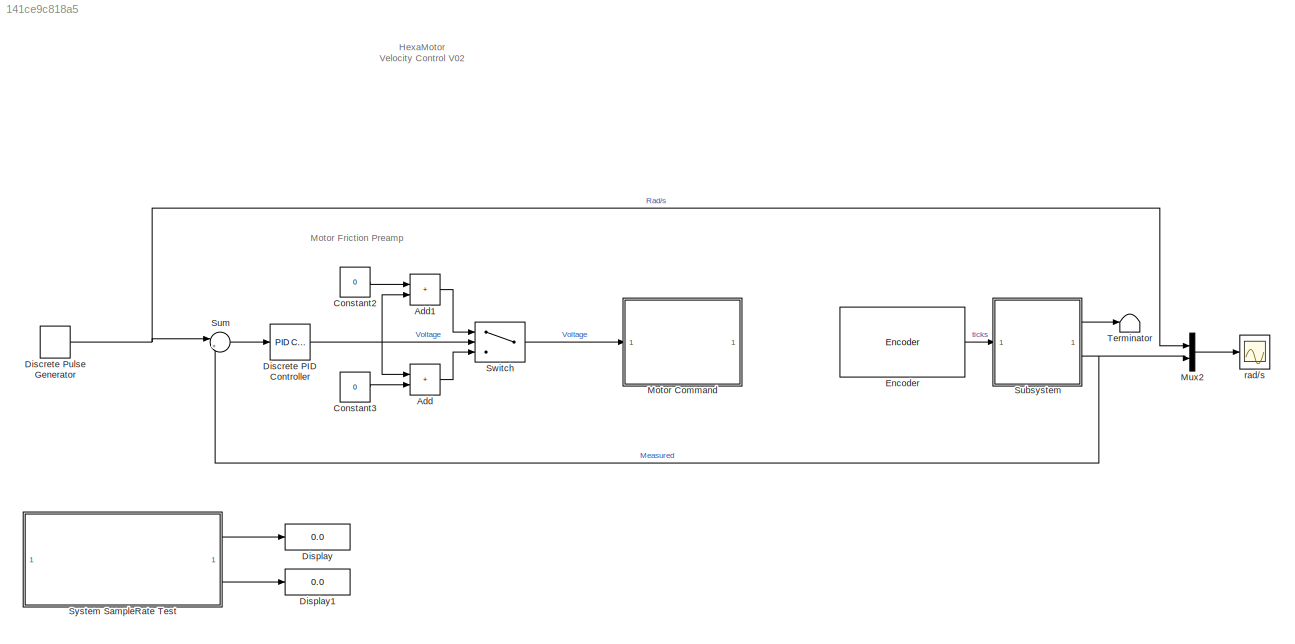
MODEL slx_141ce9c818a5
KIND model
CONFIG EnableMultiTasking = on
CONFIG SolverName = FixedStepAuto
CONFIG StopTime = 7.5
WORKSPACE source: mxarray member
WORKSPACE sampleRate = 0.005
BLOCK [Sum] Add
  IconShape = rectangular
BLOCK [Sum] Add1
  IconShape = rectangular
BLOCK [Constant] Constant2
  SampleTime = sampleRate
  Value = 0
BLOCK [Constant] Constant3
  SampleTime = sampleRate
  Value = 0
BLOCK [Reference] Discrete PID Controller  REF=slpidlib/PID Controller
  LibrarySourceBlock = simulink/Discrete/Discrete PID Controller
  SourceBlock = slpidlib/PID Controller
  SourceType = PID 1dof
BLOCK [DiscretePulseGenerator] Discrete Pulse Generator
  Amplitude = 15
  Period = 4/sampleRate
  PhaseDelay = 1/sampleRate
  PulseWidth = 2/sampleRate
  SampleTime = sampleRate
BLOCK [Display] Display
  Decimation = 1
BLOCK [Display] Display1
  Decimation = 1
BLOCK [Reference] Encoder  REF=arduinosensorlib/Encoder
  SourceBlock = arduinosensorlib/Encoder
  SourceType = Arduino Rotary Encoder
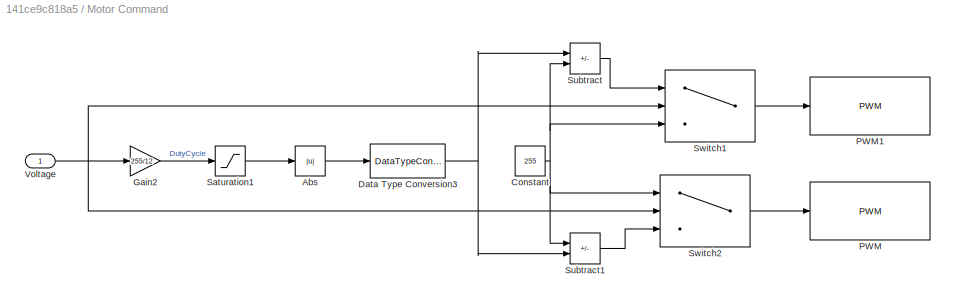
BLOCK [SubSystem] Motor Command
BLOCK [Abs] Motor Command/Abs
  SaturateOnIntegerOverflow = off
BLOCK [Constant] Motor Command/Constant
  OutDataTypeStr = uint8
  Value = 255
BLOCK [DataTypeConversion] Motor Command/Data Type Conversion3
  OutDataTypeStr = uint8
  RndMeth = Floor
  SaturateOnIntegerOverflow = off
BLOCK [Gain] Motor Command/Gain2
  Gain = 255/12
BLOCK [Reference] Motor Command/PWM  REF=arduinolib/PWM
  LibrarySourceBlock = gizmoLibrary/Arduino Utilities/PWM
  SourceBlock = arduinolib/PWM
  SourceType = Arduino PWM
BLOCK [Reference] Motor Command/PWM1  REF=arduinolib/PWM
  LibrarySourceBlock = gizmoLibrary/Arduino Utilities/PWM
  SourceBlock = arduinolib/PWM
  SourceType = Arduino PWM
BLOCK [Saturate] Motor Command/Saturation1
  LowerLimit = -255
  UpperLimit = 255
BLOCK [Sum] Motor Command/Subtract
  IconShape = rectangular
  Inputs = -+
BLOCK [Sum] Motor Command/Subtract1
  IconShape = rectangular
  Inputs = +-
BLOCK [Switch] Motor Command/Switch1
  Criteria = u2 > Threshold
  InputSameDT = off
  OutDataTypeStr = uint8
  SaturateOnIntegerOverflow = off
BLOCK [Switch] Motor Command/Switch2
  Criteria = u2 > Threshold
  InputSameDT = off
  OutDataTypeStr = uint8
  SaturateOnIntegerOverflow = off
BLOCK [Inport] Motor Command/Voltage
BLOCK [Mux] Mux2
  DisplayOption = bar
  Inputs = 2
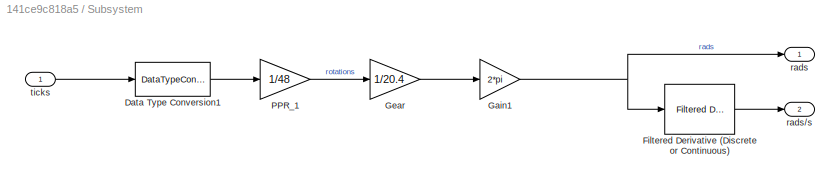
BLOCK [SubSystem] Subsystem
BLOCK [DataTypeConversion] Subsystem/Data Type Conversion1
  OutDataTypeStr = double
  RndMeth = Floor
  SaturateOnIntegerOverflow = off
BLOCK [Reference] Subsystem/Filtered Derivative (Discrete or Continuous)  REF=eeGeneralControl/Filtered Derivative
(Discrete or Continuous)
  LibrarySourceBlock = ee_sl_lib/General Control/Filtered Derivative\n(Discrete or Continuous)
  SourceBlock = eeGeneralControl/Filtered Derivative\n(Discrete or Continuous)
  SourceType = Filtered Derivative (Discrete or Continuous)
BLOCK [Gain] Subsystem/Gain1
  Gain = 2*pi
BLOCK [Gain] Subsystem/Gear
  Gain = 1/20.4
BLOCK [Gain] Subsystem/PPR_1
  Gain = 1/48
BLOCK [Outport] Subsystem/rads
BLOCK [Outport] Subsystem/rads//s
  Port = 2
BLOCK [Inport] Subsystem/ticks
BLOCK [Sum] Sum
  Inputs = |+-
BLOCK [Switch] Switch
  Criteria = u2 > Threshold
  InputSameDT = off
  SaturateOnIntegerOverflow = off
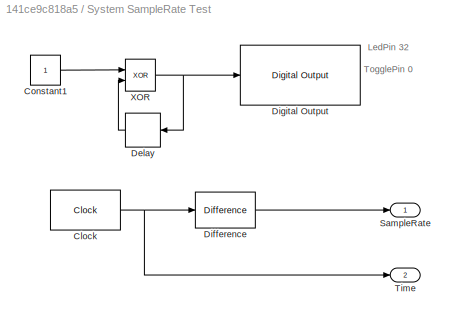
BLOCK [SubSystem] System SampleRate Test
BLOCK [Clock] System SampleRate Test/Clock
  Decimation = 3
  DisplayTime = on
BLOCK [Constant] System SampleRate Test/Constant1
  SampleTime = sampleRate
BLOCK [Delay] System SampleRate Test/Delay
  DelayLength = 1
  InitialCondition = 0
  InputPortMap = u0
  SampleTime = sampleRate
BLOCK [Reference] System SampleRate Test/Difference  REF=simulink/Quick Insert/Discrete/Difference
  SourceBlock = simulink/Quick Insert/Discrete/Difference
  SourceType = Difference
BLOCK [Reference] System SampleRate Test/Digital Output  REF=arduinolib/Digital Output
  SourceBlock = arduinolib/Digital Output
  SourceType = Arduino Digital Output
BLOCK [Outport] System SampleRate Test/SampleRate
BLOCK [Outport] System SampleRate Test/Time
  Port = 2
BLOCK [Logic] System SampleRate Test/XOR
  AllPortsSameDT = off
  IconShape = distinctive
  Operator = XOR
  OutDataTypeStr = boolean
BLOCK [Terminator] Terminator
BLOCK [Scope] rad//s
  ActiveDisplayYMaximum = 17.035196086189206
  ActiveDisplayYMinimum = -3.3167647757028536
  DataLogging = on
  DataLoggingSaveFormat = Structure With Time
  Floating = off
  GraphicalSettings = {"Style":{"BackgroundColor":[0.12941176470588237,0.12941176470588237,0.12941176470588237],"AxesColor":[0.07058823529411765,0.07058823529411765,0.07058823529411765],"LabelsColor":[0.8509803921568627,0.8509803921568627,0.8509803921568627],"PreserveColors":false,"Visible":[true,true],"LineStyle":["-","-"],"LineWidth":[1.5,1.5],"BarWidth":[0.9,0.9],"LineColor":["auto","auto"],"LineFaceAlpha":[1,1],"Li...<+2191ch>
  MultipleDisplayCache = [{"MaxYLimMag":17.035196086189206,"MaxYLimReal":17.035196086189206,"MinYLimMag":0,"MinYLimReal":-3.3167647757028536,"PlotAsMagnitudePhase":false,"ShowGrid":true,"ShowLegend":true,"Title":"%<SignalLabel>","YLabel":""}]
  NumInputPorts = 1
  ScopeFrameLocation = window
  ShowLegend = on
  Visible = on
  WasSavedAsWebScope = on
  WindowPosition = [788.000000,377.000000,803.000000,445.000000,]
ANNOTATION (root): HexaMotor Velocity Control V02
ANNOTATION (root): Motor Friction Preamp
ANNOTATION System SampleRate Test: LedPin 32
ANNOTATION System SampleRate Test: TogglePin 0
LINE Add1:1 -> Switch:1
LINE Add:1 -> Switch:3
LINE Constant2:1 -> Add1:1
LINE Constant3:1 -> Add:2
NET Discrete PID Controller:1 -> Add1:2, Add:1, Switch:2
NET Discrete Pulse Generator:1 -> Mux2:1, Sum:1
LINE Encoder:1 -> Subsystem:1
LINE Motor Command/Abs:1 -> Motor Command/Data Type Conversion3:1
NET Motor Command/Constant:1 -> Motor Command/Subtract1:1, Motor Command/Subtract:2, Motor Command/Switch1:3, Motor Command/Switch2:1
NET Motor Command/Data Type Conversion3:1 -> Motor Command/Subtract1:2, Motor Command/Subtract:1
LINE Motor Command/Gain2:1 -> Motor Command/Saturation1:1
LINE Motor Command/Saturation1:1 -> Motor Command/Abs:1
LINE Motor Command/Subtract1:1 -> Motor Command/Switch2:3
LINE Motor Command/Subtract:1 -> Motor Command/Switch1:1
LINE Motor Command/Switch1:1 -> Motor Command/PWM1:1
LINE Motor Command/Switch2:1 -> Motor Command/PWM:1
NET Motor Command/Voltage:1 -> Motor Command/Gain2:1, Motor Command/Switch1:2, Motor Command/Switch2:2
LINE Mux2:1 -> rad//s:1
LINE Subsystem/Data Type Conversion1:1 -> Subsystem/PPR_1:1
LINE Subsystem/Filtered Derivative (Discrete or Continuous):1 -> Subsystem/rads//s:1
NET Subsystem/Gain1:1 -> Subsystem/Filtered Derivative (Discrete or Continuous):1, Subsystem/rads:1
LINE Subsystem/Gear:1 -> Subsystem/Gain1:1
LINE Subsystem/PPR_1:1 -> Subsystem/Gear:1
LINE Subsystem/ticks:1 -> Subsystem/Data Type Conversion1:1
LINE Subsystem:1 -> Terminator:1
NET Subsystem:2 -> Mux2:2, Sum:2
LINE Sum:1 -> Discrete PID Controller:1
LINE Switch:1 -> Motor Command:1
NET System SampleRate Test/Clock:1 -> System SampleRate Test/Difference:1, System SampleRate Test/Time:1
LINE System SampleRate Test/Constant1:1 -> System SampleRate Test/XOR:1
LINE System SampleRate Test/Delay:1 -> System SampleRate Test/XOR:2
LINE System SampleRate Test/Difference:1 -> System SampleRate Test/SampleRate:1
NET System SampleRate Test/XOR:1 -> System SampleRate Test/Delay:1, System SampleRate Test/Digital Output:1
LINE System SampleRate Test:1 -> Display:1
LINE System SampleRate Test:2 -> Display1:1
note: NET lines group one-source signal fan-out (src -> all destinations, sorted); 1:1 wires keep LINE
